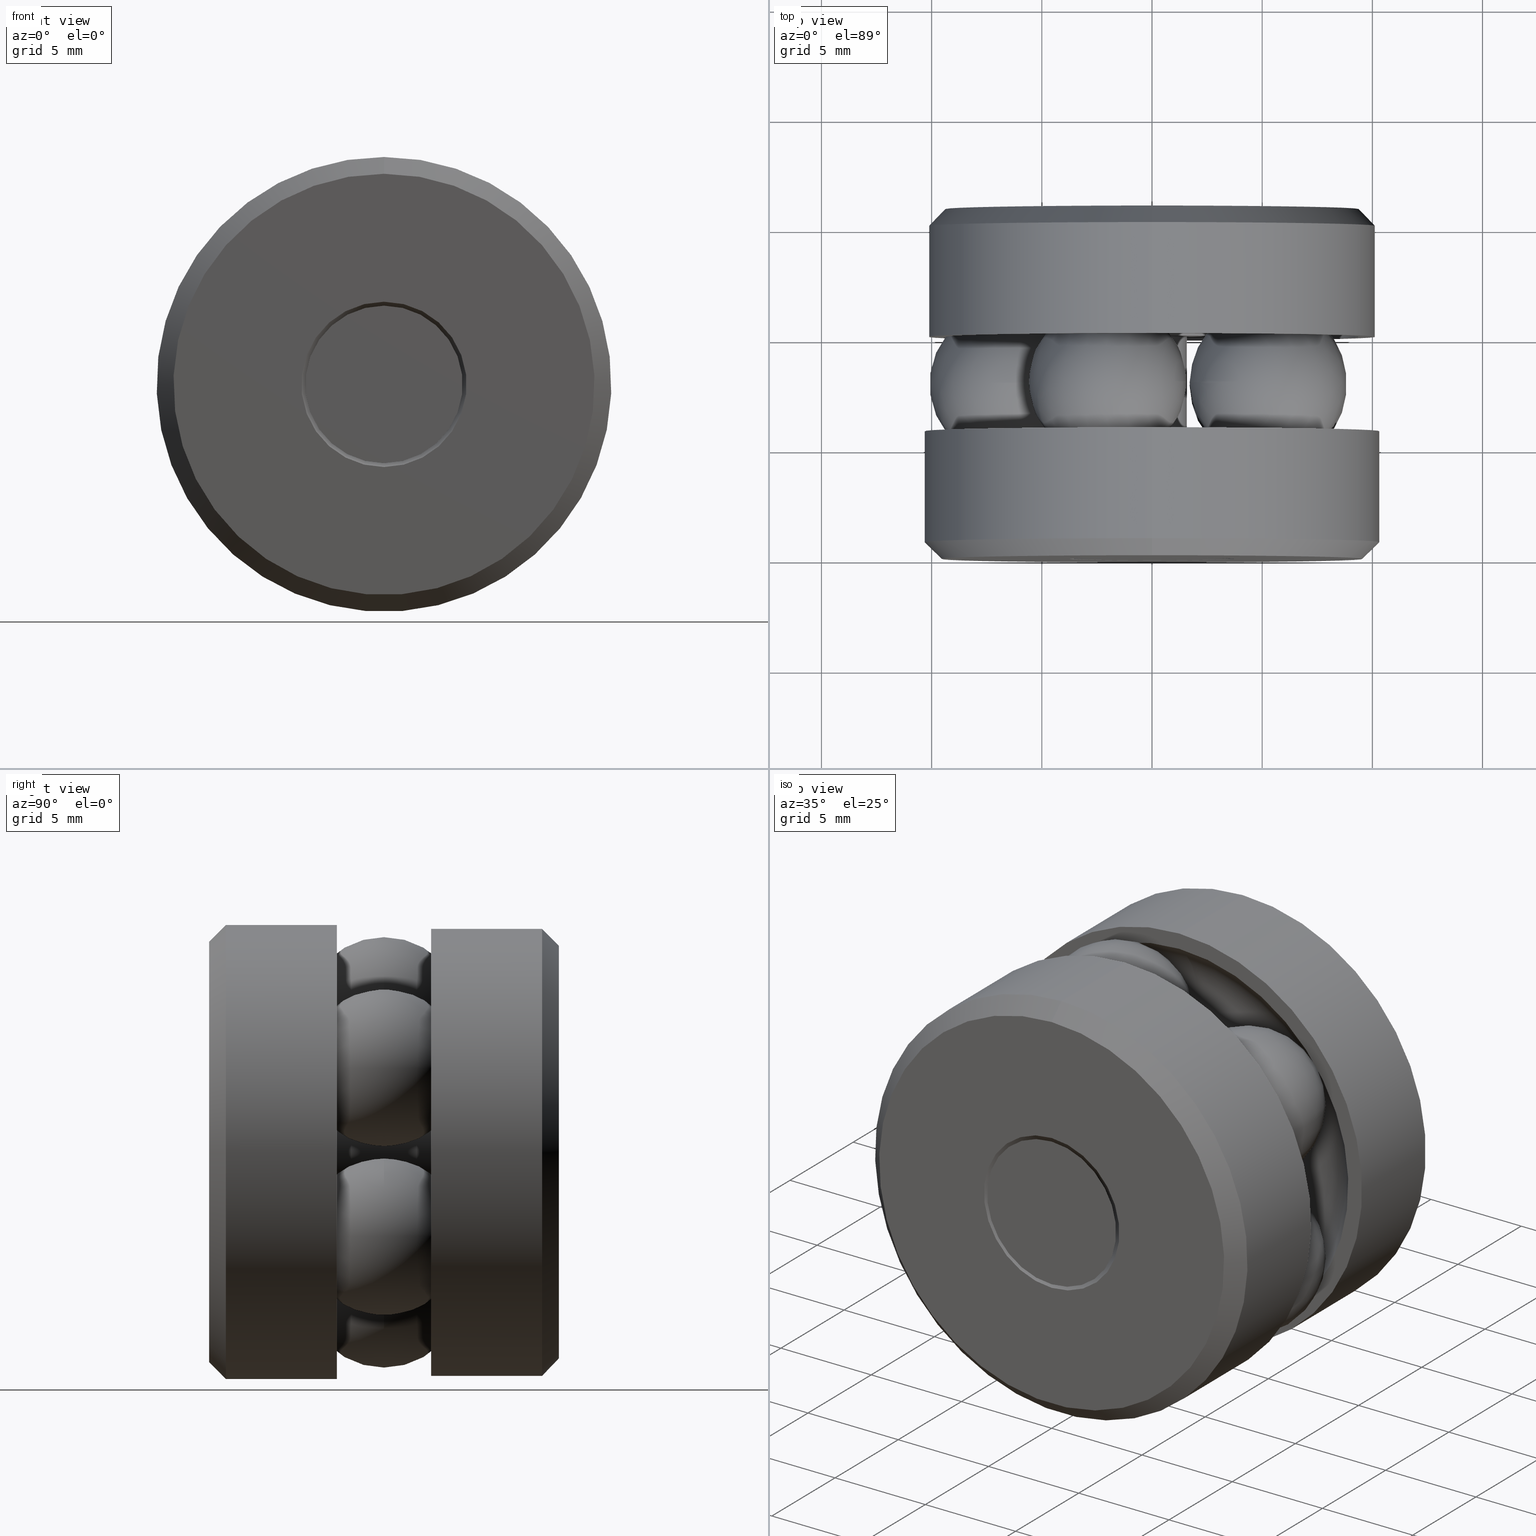
[diagram: canonical four-view strip — front | top / right | iso, engineering-drawing reading convention]
A machine part, canonical four-view strip (front | top / right | iso — engineering-drawing reading convention). The complete STEP part file that produces these views, byte-faithful:
ISO-10303-21;
HEADER;
FILE_DESCRIPTION (( 'STEP AP203' ),
    '1' );
FILE_NAME ('T-114RG_T-114RG-0013.step',
    '2016-02-04T15:34:09',
    ( '' ),
    ( '' ),
    'SwSTEP 2.0',
    'SolidWorks 2016',
    '' );
FILE_SCHEMA (( 'CONFIG_CONTROL_DESIGN' ));
ENDSEC;

DATA;
#1 = EDGE_CURVE ( 'NONE', #20, #20, #309, .T. ) ;
#2 = DIRECTION ( 'NONE',  ( 1.000000000000000000, 0.0000000000000000000, 0.0000000000000000000 ) ) ;
#3 = EDGE_LOOP ( 'NONE', ( #235 ) ) ;
#4 = EDGE_LOOP ( 'NONE', ( #404 ) ) ;
#5 = AXIS2_PLACEMENT_3D ( 'NONE', #10, #94, #499 ) ;
#6 = DIRECTION ( 'NONE',  ( 0.0000000000000000000, 0.0000000000000000000, -1.000000000000000000 ) ) ;
#7 = ORIENTED_EDGE ( 'NONE', *, *, #57, .T. ) ;
#8 = DIRECTION ( 'NONE',  ( 0.0000000000000000000, 0.0000000000000000000, 1.000000000000000000 ) ) ;
#9 = CALENDAR_DATE ( 2016, 4, 2 ) ;
#10 = CARTESIAN_POINT ( 'NONE',  ( -0.1406249999999991400, 0.0000000000000000000, 0.0000000000000000000 ) ) ;
#11 = FACE_OUTER_BOUND ( 'NONE', #191, .T. ) ;
#12 = DIRECTION ( 'NONE',  ( -0.0000000000000000000, 1.000000000000000000, -0.0000000000000000000 ) ) ;
#13 = ADVANCED_FACE ( 'NONE', ( ), #423, .T. ) ;
#14 = CARTESIAN_POINT ( 'NONE',  ( 0.0000000000000000000, 0.2281999999999997600, 0.0000000000000000000 ) ) ;
#15 = ADVANCED_FACE ( 'NONE', ( #521, #83 ), #449, .T. ) ;
#16 = DIRECTION ( 'NONE',  ( 0.0000000000000000000, 0.0000000000000000000, 1.000000000000000000 ) ) ;
#17 = CARTESIAN_POINT ( 'NONE',  ( 0.0000000000000000000, 0.3968000000000001000, 0.0000000000000000000 ) ) ;
#18 = EDGE_LOOP ( 'NONE', ( #389 ) ) ;
#19 = FACE_OUTER_BOUND ( 'NONE', #522, .T. ) ;
#20 = VERTEX_POINT ( 'NONE', #181 ) ;
#21 = DIRECTION ( 'NONE',  ( 0.0000000000000000000, -1.000000000000000000, 0.0000000000000000000 ) ) ;
#22 = PRODUCT_DEFINITION_SHAPE ( 'NONE', 'NONE',  #222 ) ;
#23 = AXIS2_PLACEMENT_3D ( 'NONE', #216, #473, #446 ) ;
#24 = DIRECTION ( 'NONE',  ( 0.0000000000000000000, 0.0000000000000000000, 1.000000000000000000 ) ) ;
#25 = CC_DESIGN_DATE_AND_TIME_ASSIGNMENT ( #390, #245, ( #510 ) ) ;
#26 = EDGE_LOOP ( 'NONE', ( #444 ) ) ;
#27 = CARTESIAN_POINT ( 'NONE',  ( -0.4062500000000000000, 0.2281999999999997900, 0.0000000000000000000 ) ) ;
#28 = PERSON_AND_ORGANIZATION ( #529, #126 ) ;
#29 = MANIFOLD_SOLID_BREP ( 'BALLS[1]', #219 ) ;
#30 = EDGE_CURVE ( 'NONE', #445, #445, #410, .T. ) ;
#31 = EDGE_LOOP ( 'NONE', ( #7 ) ) ;
#32 = TOROIDAL_SURFACE ( 'NONE', #233, 0.2567499999999999800, 0.1405000000000000700 ) ;
#33 = FACE_BOUND ( 'NONE', #120, .T. ) ;
#34 = PLANE ( 'NONE',  #291 ) ;
#35 =( GEOMETRIC_REPRESENTATION_CONTEXT ( 3 ) GLOBAL_UNCERTAINTY_ASSIGNED_CONTEXT ( ( #438 ) ) GLOBAL_UNIT_ASSIGNED_CONTEXT ( ( #112, #209, #483 ) ) REPRESENTATION_CONTEXT ( 'NONE', 'WORKASPACE' ) );
#36 = CARTESIAN_POINT ( 'NONE',  ( 0.0000000000000000000, 0.6250000000000000000, 0.0000000000000000000 ) ) ;
#37 = EDGE_LOOP ( 'NONE', ( #335 ) ) ;
#38 = AXIS2_PLACEMENT_3D ( 'NONE', #428, #416, #407 ) ;
#39 = APPROVAL_ROLE ( '' ) ;
#40 = PERSON_AND_ORGANIZATION_ROLE ( 'creator' ) ;
#41 = ORIENTED_EDGE ( 'NONE', *, *, #30, .T. ) ;
#42 = CIRCLE ( 'NONE', #71, 0.3692500000000000800 ) ;
#43 = CIRCLE ( 'NONE', #278, 0.1406249999999991400 ) ;
#44 = DIRECTION ( 'NONE',  ( -0.0000000000000000000, 1.000000000000000000, -0.0000000000000000000 ) ) ;
#45 = AXIS2_PLACEMENT_3D ( 'NONE', #478, #6, #2 ) ;
#46 = FACE_OUTER_BOUND ( 'NONE', #66, .T. ) ;
#47 = EDGE_LOOP ( 'NONE', ( #348 ) ) ;
#48 = LENGTH_MEASURE_WITH_UNIT ( LENGTH_MEASURE( 0.02539999999999999900 ), #100 );
#49 = APPROVAL ( #243, 'UNSPECIFIED' ) ;
#50 = ADVANCED_FACE ( 'NONE', ( #190, #287 ), #161, .F. ) ;
#51 = CARTESIAN_POINT ( 'NONE',  ( 0.0000000000000000000, 0.5468750000000000000, 0.0000000000000000000 ) ) ;
#52 = ORIENTED_EDGE ( 'NONE', *, *, #319, .F. ) ;
#53 = DIRECTION ( 'NONE',  ( -0.0000000000000000000, 1.000000000000000000, -0.0000000000000000000 ) ) ;
#54 = COORDINATED_UNIVERSAL_TIME_OFFSET ( 5, 0, .BEHIND. ) ;
#55 = ADVANCED_FACE ( 'NONE', ( #72, #397 ), #531, .T. ) ;
#56 = CYLINDRICAL_SURFACE ( 'NONE', #247, 0.06250000000000005600 ) ;
#57 = EDGE_CURVE ( 'NONE', #324, #324, #506, .T. ) ;
#58 = DIRECTION ( 'NONE',  ( 0.0000000000000000000, 0.0000000000000000000, 1.000000000000000000 ) ) ;
#59 = CARTESIAN_POINT ( 'NONE',  ( 0.0000000000000000000, 0.0000000000000000000, 0.0000000000000000000 ) ) ;
#60 = AXIS2_PLACEMENT_3D ( 'NONE', #392, #154, #202 ) ;
#61 = DIRECTION ( 'NONE',  ( -0.0000000000000000000, 1.000000000000000000, 0.0000000000000000000 ) ) ;
#62 = FACE_BOUND ( 'NONE', #411, .T. ) ;
#63 = ORIENTED_EDGE ( 'NONE', *, *, #171, .T. ) ;
#64 = VERTEX_POINT ( 'NONE', #205 ) ;
#65 = AXIS2_PLACEMENT_3D ( 'NONE', #479, #369, #58 ) ;
#66 = EDGE_LOOP ( 'NONE', ( #492 ) ) ;
#67 = CARTESIAN_POINT ( 'NONE',  ( 0.0000000000000000000, 0.03000000000000031100, 0.0000000000000000000 ) ) ;
#68 = LOCAL_TIME ( 10, 34, 9.000000000000000000, #174 ) ;
#69 = FACE_OUTER_BOUND ( 'NONE', #183, .T. ) ;
#70 = DIRECTION ( 'NONE',  ( 0.0000000000000000000, 0.0000000000000000000, 1.000000000000000000 ) ) ;
#71 = AXIS2_PLACEMENT_3D ( 'NONE', #386, #415, #304 ) ;
#72 = FACE_OUTER_BOUND ( 'NONE', #172, .T. ) ;
#73 = ORIENTED_EDGE ( 'NONE', *, *, #440, .T. ) ;
#74 = VERTEX_POINT ( 'NONE', #422 ) ;
#75 = CC_DESIGN_APPROVAL ( #49, ( #510 ) ) ;
#76 = CARTESIAN_POINT ( 'NONE',  ( 0.0000000000000000000, 0.6250000000000000000, 0.0000000000000000000 ) ) ;
#77 = MANIFOLD_SOLID_BREP ( 'BALLS[4]', #110 ) ;
#78 = EDGE_LOOP ( 'NONE', ( #262 ) ) ;
#79 = APPROVAL_DATE_TIME ( #187, #400 ) ;
#80 = CIRCLE ( 'NONE', #114, 0.1443500000000000900 ) ;
#81 = CARTESIAN_POINT ( 'NONE',  ( -0.1443500000000000900, 0.3968000000000001000, 0.0000000000000000000 ) ) ;
#82 = EDGE_CURVE ( 'NONE', #206, #206, #530, .T. ) ;
#83 = FACE_BOUND ( 'NONE', #26, .T. ) ;
#84 = ORIENTED_EDGE ( 'NONE', *, *, #82, .F. ) ;
#85 = VERTEX_POINT ( 'NONE', #237 ) ;
#86 = DIRECTION ( 'NONE',  ( 0.0000000000000000000, 0.0000000000000000000, 1.000000000000000000 ) ) ;
#87 = ORIENTED_EDGE ( 'NONE', *, *, #30, .F. ) ;
#88 = ADVANCED_FACE ( 'NONE', ( #271, #182 ), #153, .F. ) ;
#89 = APPROVAL_PERSON_ORGANIZATION ( #199, #400, #308 ) ;
#90 = CYLINDRICAL_SURFACE ( 'NONE', #524, 0.06750000000000003200 ) ;
#91 = DIRECTION ( 'NONE',  ( -0.8090169943749507800, 0.0000000000000000000, -0.5877852522924685900 ) ) ;
#92 = DIRECTION ( 'NONE',  ( 0.0000000000000000000, 0.0000000000000000000, 1.000000000000000000 ) ) ;
#93 = ADVANCED_FACE ( 'NONE', ( #62, #46 ), #149, .F. ) ;
#94 = DIRECTION ( 'NONE',  ( 0.0000000000000000000, -1.000000000000000000, 0.0000000000000000000 ) ) ;
#95 = CARTESIAN_POINT ( 'NONE',  ( 0.0000000000000000000, 0.3968000000000000400, 0.0000000000000000000 ) ) ;
#96 = EDGE_LOOP ( 'NONE', ( #87 ) ) ;
#97 = ORIENTED_EDGE ( 'NONE', *, *, #494, .F. ) ;
#98 = VERTEX_POINT ( 'NONE', #321 ) ;
#99 = AXIS2_PLACEMENT_3D ( 'NONE', #277, #363, #358 ) ;
#100 =( LENGTH_UNIT ( ) NAMED_UNIT ( * ) SI_UNIT ( $, .METRE. ) );
#101 = CARTESIAN_POINT ( 'NONE',  ( 0.0000000000000000000, 0.5448039321881347200, 0.0000000000000000000 ) ) ;
#102 = CC_DESIGN_SECURITY_CLASSIFICATION ( #510, ( #371 ) ) ;
#103 = DIRECTION ( 'NONE',  ( -0.0000000000000000000, 1.000000000000000000, -0.0000000000000000000 ) ) ;
#104 = ORIENTED_EDGE ( 'NONE', *, *, #227, .T. ) ;
#105 = COORDINATED_UNIVERSAL_TIME_OFFSET ( 5, 0, .BEHIND. ) ;
#106 = CARTESIAN_POINT ( 'NONE',  ( 0.0000000000000000000, -9.172088794783619300E-019, 0.0000000000000000000 ) ) ;
#107 = FACE_OUTER_BOUND ( 'NONE', #186, .T. ) ;
#108 = CARTESIAN_POINT ( 'NONE',  ( 0.2077151133057686100, 0.3125000000000000000, 0.1509138635260912900 ) ) ;
#109 = EDGE_CURVE ( 'NONE', #98, #98, #370, .T. ) ;
#110 = CLOSED_SHELL ( 'NONE', ( #129 ) ) ;
#111 = CLOSED_SHELL ( 'NONE', ( #50, #88, #215, #346, #519, #253, #477, #55 ) ) ;
#112 =( CONVERSION_BASED_UNIT ( 'INCH', #48 ) LENGTH_UNIT ( ) NAMED_UNIT ( #220 ) );
#113 = DIRECTION ( 'NONE',  ( 0.0000000000000000000, -1.000000000000000000, 0.0000000000000000000 ) ) ;
#114 = AXIS2_PLACEMENT_3D ( 'NONE', #14, #12, #8 ) ;
#115 = EDGE_LOOP ( 'NONE', ( #155 ) ) ;
#116 = MANIFOLD_SOLID_BREP ( 'Revolve3', #481 ) ;
#117 = LOCAL_TIME ( 10, 34, 9.000000000000000000, #225 ) ;
#118 = CARTESIAN_POINT ( 'NONE',  ( 0.0000000000000000000, 0.03000000000000031100, 0.4062500000000000000 ) ) ;
#119 = CARTESIAN_POINT ( 'NONE',  ( 0.0000000000000000000, 0.0000000000000000000, 0.0000000000000000000 ) ) ;
#120 = EDGE_LOOP ( 'NONE', ( #97 ) ) ;
#121 = CIRCLE ( 'NONE', #359, 0.06750000000000000400 ) ;
#122 = FACE_BOUND ( 'NONE', #512, .T. ) ;
#123 = AXIS2_PLACEMENT_3D ( 'NONE', #334, #381, #258 ) ;
#124 = DIRECTION ( 'NONE',  ( -0.0000000000000000000, 1.000000000000000000, -0.0000000000000000000 ) ) ;
#125 = EDGE_LOOP ( 'NONE', ( #360 ) ) ;
#126 = ORGANIZATION ( 'UNSPECIFIED', 'UNSPECIFIED', '' ) ;
#127 = DIRECTION ( 'NONE',  ( -0.0000000000000000000, 1.000000000000000000, -0.0000000000000000000 ) ) ;
#128 = PRODUCT_RELATED_PRODUCT_CATEGORY ( 'detail', '', ( #180 ) ) ;
#129 = ADVANCED_FACE ( 'NONE', ( ), #255, .T. ) ;
#130 = DIRECTION ( 'NONE',  ( -0.0000000000000000000, 1.000000000000000000, -0.0000000000000000000 ) ) ;
#131 = DIRECTION ( 'NONE',  ( 0.0000000000000000000, 0.0000000000000000000, 1.000000000000000000 ) ) ;
#132 = CARTESIAN_POINT ( 'NONE',  ( 0.0000000000000000000, 0.3125000000000000000, 0.0000000000000000000 ) ) ;
#133 = ADVANCED_FACE ( 'NONE', ( ), #382, .T. ) ;
#134 = CARTESIAN_POINT ( 'NONE',  ( 0.0000000000000000000, 0.3968000000000001000, 0.3691499999999998700 ) ) ;
#135 = ORIENTED_EDGE ( 'NONE', *, *, #1, .T. ) ;
#136 = FACE_OUTER_BOUND ( 'NONE', #203, .T. ) ;
#137 = EDGE_CURVE ( 'NONE', #534, #534, #487, .T. ) ;
#138 = SPHERICAL_SURFACE ( 'NONE', #463, 0.1405000000000000400 ) ;
#139 = CARTESIAN_POINT ( 'NONE',  ( 0.0000000000000000000, -9.172088794783619300E-019, 0.1476960678118644500 ) ) ;
#140 = DIRECTION ( 'NONE',  ( 0.0000000000000000000, 0.0000000000000000000, 1.000000000000000000 ) ) ;
#141 = ORIENTED_EDGE ( 'NONE', *, *, #517, .F. ) ;
#142 = AXIS2_PLACEMENT_3D ( 'NONE', #368, #356, #350 ) ;
#143 = DIRECTION ( 'NONE',  ( 0.0000000000000000000, 0.0000000000000000000, 1.000000000000000000 ) ) ;
#144 = DIRECTION ( 'NONE',  ( 0.0000000000000000000, 0.0000000000000000000, 1.000000000000000000 ) ) ;
#145 = EDGE_CURVE ( 'NONE', #425, #425, #42, .T. ) ;
#146 = CARTESIAN_POINT ( 'NONE',  ( 0.0000000000000000000, 0.6250000000000000000, 0.3692500000000000800 ) ) ;
#147 = EDGE_LOOP ( 'NONE', ( #229 ) ) ;
#148 = APPROVAL_DATE_TIME ( #254, #49 ) ;
#149 = CONICAL_SURFACE ( 'NONE', #486, 0.1476960678118644500, 0.7853981633974428400 ) ;
#150 = FACE_BOUND ( 'NONE', #443, .T. ) ;
#151 = CARTESIAN_POINT ( 'NONE',  ( 0.0000000000000000000, 0.3968000000000000400, 0.06750000000000008800 ) ) ;
#152 = AXIS2_PLACEMENT_3D ( 'NONE', #51, #44, #249 ) ;
#153 = CYLINDRICAL_SURFACE ( 'NONE', #505, 0.06750000000000008800 ) ;
#154 = DIRECTION ( 'NONE',  ( 0.0000000000000000000, -1.000000000000000000, 0.0000000000000000000 ) ) ;
#155 = ORIENTED_EDGE ( 'NONE', *, *, #347, .F. ) ;
#156 = EDGE_LOOP ( 'NONE', ( #198 ) ) ;
#157 = APPROVAL_PERSON_ORGANIZATION ( #267, #49, #238 ) ;
#158 = DIRECTION ( 'NONE',  ( -0.0000000000000000000, 1.000000000000000000, 0.0000000000000000000 ) ) ;
#159 = FACE_OUTER_BOUND ( 'NONE', #431, .T. ) ;
#160 = AXIS2_PLACEMENT_3D ( 'NONE', #279, #103, #263 ) ;
#161 = CONICAL_SURFACE ( 'NONE', #307, 0.06750000000000008800, 0.7853981633974429500 ) ;
#162 = DIRECTION ( 'NONE',  ( -0.0000000000000000000, 1.000000000000000000, -0.0000000000000000000 ) ) ;
#163 = AXIS2_PLACEMENT_3D ( 'NONE', #385, #86, #270 ) ;
#164 = EDGE_LOOP ( 'NONE', ( #280 ) ) ;
#165 = VERTEX_POINT ( 'NONE', #207 ) ;
#166 = DIRECTION ( 'NONE',  ( 0.0000000000000000000, 0.0000000000000000000, 1.000000000000000000 ) ) ;
#167 = AXIS2_PLACEMENT_3D ( 'NONE', #471, #470, #459 ) ;
#168 = DIRECTION ( 'NONE',  ( 0.0000000000000000000, 0.0000000000000000000, -1.000000000000000000 ) ) ;
#169 = CARTESIAN_POINT ( 'NONE',  ( 0.2077151133057663900, 0.3125000000000000000, -0.1509138635260942900 ) ) ;
#170 = MANIFOLD_SOLID_BREP ( 'Revolve2[2]', #111 ) ;
#171 = EDGE_CURVE ( 'NONE', #312, #312, #482, .T. ) ;
#172 = EDGE_LOOP ( 'NONE', ( #508 ) ) ;
#173 = ADVANCED_FACE ( 'NONE', ( #496, #136 ), #230, .T. ) ;
#174 = COORDINATED_UNIVERSAL_TIME_OFFSET ( 5, 0, .BEHIND. ) ;
#175 = CARTESIAN_POINT ( 'NONE',  ( 0.0000000000000000000, 0.0000000000000000000, 0.0000000000000000000 ) ) ;
#176 = FACE_OUTER_BOUND ( 'NONE', #223, .T. ) ;
#177 = DIRECTION ( 'NONE',  ( 0.0000000000000000000, 0.0000000000000000000, 1.000000000000000000 ) ) ;
#178 = PLANE ( 'NONE',  #60 ) ;
#179 = ADVANCED_FACE ( 'NONE', ( ), #364, .T. ) ;
#180 = PRODUCT ( 'T-114RG_T-114RG-0013', 'T-114RG_T-114RG-0013', '', ( #409 ) ) ;
#181 = CARTESIAN_POINT ( 'NONE',  ( 0.0000000000000000000, 0.2281999999999998500, 0.4062500000000000000 ) ) ;
#182 = FACE_OUTER_BOUND ( 'NONE', #383, .T. ) ;
#183 = EDGE_LOOP ( 'NONE', ( #239 ) ) ;
#184 = AXIS2_PLACEMENT_3D ( 'NONE', #108, #236, #91 ) ;
#185 = VERTEX_POINT ( 'NONE', #433 ) ;
#186 = EDGE_LOOP ( 'NONE', ( #532 ) ) ;
#187 = DATE_AND_TIME ( #298, #418 ) ;
#188 = FACE_OUTER_BOUND ( 'NONE', #252, .T. ) ;
#189 = CARTESIAN_POINT ( 'NONE',  ( 0.0000000000000000000, 0.6250000000000000000, 0.0000000000000000000 ) ) ;
#190 = FACE_OUTER_BOUND ( 'NONE', #31, .T. ) ;
#191 = EDGE_LOOP ( 'NONE', ( #218 ) ) ;
#192 = VERTEX_POINT ( 'NONE', #420 ) ;
#193 = PLANE ( 'NONE',  #5 ) ;
#194 = CC_DESIGN_PERSON_AND_ORGANIZATION_ASSIGNMENT ( #28, #396, ( #180 ) ) ;
#195 = CARTESIAN_POINT ( 'NONE',  ( 0.0000000000000000000, 0.6250000000000000000, 0.1476960678118645600 ) ) ;
#196 = AXIS2_PLACEMENT_3D ( 'NONE', #293, #475, #294 ) ;
#197 = DIRECTION ( 'NONE',  ( 0.0000000000000000000, 0.0000000000000000000, 1.000000000000000000 ) ) ;
#198 = ORIENTED_EDGE ( 'NONE', *, *, #517, .T. ) ;
#199 = PERSON_AND_ORGANIZATION ( #529, #126 ) ;
#200 = CIRCLE ( 'NONE', #414, 0.3992499999999999900 ) ;
#201 = EDGE_CURVE ( 'NONE', #192, #192, #351, .T. ) ;
#202 = DIRECTION ( 'NONE',  ( 0.0000000000000000000, -0.0000000000000000000, -1.000000000000000000 ) ) ;
#203 = EDGE_LOOP ( 'NONE', ( #84 ) ) ;
#204 = ORIENTED_EDGE ( 'NONE', *, *, #408, .T. ) ;
#205 = CARTESIAN_POINT ( 'NONE',  ( 0.0000000000000000000, 0.6250000000000000000, 0.1406249999999992500 ) ) ;
#206 = VERTEX_POINT ( 'NONE', #118 ) ;
#207 = CARTESIAN_POINT ( 'NONE',  ( 0.0000000000000000000, 0.07812499999999998600, 0.06250000000000001400 ) ) ;
#208 = CARTESIAN_POINT ( 'NONE',  ( 0.0000000000000000000, 0.3968000000000001000, 0.1443500000000000600 ) ) ;
#209 =( NAMED_UNIT ( * ) PLANE_ANGLE_UNIT ( ) SI_UNIT ( $, .RADIAN. ) );
#210 = EDGE_LOOP ( 'NONE', ( #63 ) ) ;
#211 = PERSON_AND_ORGANIZATION ( #529, #126 ) ;
#212 = CIRCLE ( 'NONE', #447, 0.06750000000000008800 ) ;
#213 = CARTESIAN_POINT ( 'NONE',  ( 0.0000000000000000000, 0.07812499999999998600, 0.0000000000000000000 ) ) ;
#214 = ADVANCED_FACE ( 'NONE', ( #261, #240 ), #32, .F. ) ;
#215 = ADVANCED_FACE ( 'NONE', ( #454, #467 ), #34, .T. ) ;
#216 = CARTESIAN_POINT ( 'NONE',  ( -0.07934011330577051000, 0.3125000000000000000, -0.2441837605587797700 ) ) ;
#217 = AXIS2_PLACEMENT_3D ( 'NONE', #489, #264, #361 ) ;
#218 = ORIENTED_EDGE ( 'NONE', *, *, #347, .T. ) ;
#219 = CLOSED_SHELL ( 'NONE', ( #13 ) ) ;
#220 = DIMENSIONAL_EXPONENTS ( 1.000000000000000000, 0.0000000000000000000, 0.0000000000000000000, 0.0000000000000000000, 0.0000000000000000000, 0.0000000000000000000, 0.0000000000000000000 ) ;
#221 = CONICAL_SURFACE ( 'NONE', #490, 0.06250000000000001400, 0.7853981633974427300 ) ;
#222 = PRODUCT_DEFINITION ( 'UNKNOWN', '', #371, #244 ) ;
#223 = EDGE_LOOP ( 'NONE', ( #323 ) ) ;
#224 = AXIS2_PLACEMENT_3D ( 'NONE', #175, #325, #92 ) ;
#225 = COORDINATED_UNIVERSAL_TIME_OFFSET ( 5, 0, .BEHIND. ) ;
#226 = DIRECTION ( 'NONE',  ( 0.0000000000000000000, -1.000000000000000000, 0.0000000000000000000 ) ) ;
#227 = EDGE_CURVE ( 'NONE', #85, #85, #465, .T. ) ;
#228 = DIRECTION ( 'NONE',  ( -0.8090169943749422300, 0.0000000000000000000, 0.5877852522924802400 ) ) ;
#229 = ORIENTED_EDGE ( 'NONE', *, *, #57, .F. ) ;
#230 = CONICAL_SURFACE ( 'NONE', #123, 0.4062500000000000000, 0.7853981633974429500 ) ;
#231 = CONICAL_SURFACE ( 'NONE', #403, 0.3692500000000000800, 0.7853981633974391800 ) ;
#232 = DIRECTION ( 'NONE',  ( 0.5877852522924802400, -0.0000000000000000000, 0.8090169943749422300 ) ) ;
#233 = AXIS2_PLACEMENT_3D ( 'NONE', #132, #130, #197 ) ;
#234 = DIRECTION ( 'NONE',  ( -0.0000000000000000000, 1.000000000000000000, -0.0000000000000000000 ) ) ;
#235 = ORIENTED_EDGE ( 'NONE', *, *, #109, .T. ) ;
#236 = DIRECTION ( 'NONE',  ( -0.5877852522924685900, 0.0000000000000000000, 0.8090169943749507800 ) ) ;
#237 = CARTESIAN_POINT ( 'NONE',  ( 0.0000000000000000000, 0.3968000000000000400, 0.3992499999999999900 ) ) ;
#238 = APPROVAL_ROLE ( '' ) ;
#239 = ORIENTED_EDGE ( 'NONE', *, *, #1, .F. ) ;
#240 = FACE_OUTER_BOUND ( 'NONE', #164, .T. ) ;
#241 = FACE_OUTER_BOUND ( 'NONE', #315, .T. ) ;
#242 = AXIS2_PLACEMENT_3D ( 'NONE', #372, #234, #542 ) ;
#243 = APPROVAL_STATUS ( 'not_yet_approved' ) ;
#244 = DESIGN_CONTEXT ( 'detailed design', #328, 'design' ) ;
#245 = DATE_TIME_ROLE ( 'classification_date' ) ;
#246 = APPROVAL ( #272, 'UNSPECIFIED' ) ;
#247 = AXIS2_PLACEMENT_3D ( 'NONE', #327, #518, #306 ) ;
#248 = ADVANCED_FACE ( 'NONE', ( #336 ), #251, .T. ) ;
#249 = DIRECTION ( 'NONE',  ( 0.0000000000000000000, 0.0000000000000000000, 1.000000000000000000 ) ) ;
#250 = EDGE_CURVE ( 'NONE', #523, #523, #121, .T. ) ;
#251 = PLANE ( 'NONE',  #384 ) ;
#252 = EDGE_LOOP ( 'NONE', ( #507 ) ) ;
#253 = ADVANCED_FACE ( 'NONE', ( #19, #331 ), #541, .T. ) ;
#254 = DATE_AND_TIME ( #379, #493 ) ;
#255 = SPHERICAL_SURFACE ( 'NONE', #23, 0.1405000000000000400 ) ;
#256 = CIRCLE ( 'NONE', #341, 0.1443500000000000600 ) ;
#257 = DIRECTION ( 'NONE',  ( 0.0000000000000000000, -0.0000000000000000000, -1.000000000000000000 ) ) ;
#258 = DIRECTION ( 'NONE',  ( 0.0000000000000000000, 0.0000000000000000000, 1.000000000000000000 ) ) ;
#259 = CARTESIAN_POINT ( 'NONE',  ( 0.0000000000000000000, 0.07812499999999998600, 0.0000000000000000000 ) ) ;
#260 = AXIS2_PLACEMENT_3D ( 'NONE', #342, #286, #285 ) ;
#261 = FACE_OUTER_BOUND ( 'NONE', #322, .T. ) ;
#262 = ORIENTED_EDGE ( 'NONE', *, *, #201, .F. ) ;
#263 = DIRECTION ( 'NONE',  ( 0.0000000000000000000, 0.0000000000000000000, 1.000000000000000000 ) ) ;
#264 = DIRECTION ( 'NONE',  ( -0.9510565162951544200, 0.0000000000000000000, -0.3090169943749447300 ) ) ;
#265 = MANIFOLD_SOLID_BREP ( 'BALLS[2]', #310 ) ;
#266 = ORIENTED_EDGE ( 'NONE', *, *, #376, .T. ) ;
#267 = PERSON_AND_ORGANIZATION ( #529, #126 ) ;
#268 = CIRCLE ( 'NONE', #167, 0.3691499999999998700 ) ;
#269 = AXIS2_PLACEMENT_3D ( 'NONE', #27, #61, #24 ) ;
#270 = DIRECTION ( 'NONE',  ( 1.000000000000000000, 0.0000000000000000000, 0.0000000000000000000 ) ) ;
#271 = FACE_OUTER_BOUND ( 'NONE', #47, .T. ) ;
#272 = APPROVAL_STATUS ( 'not_yet_approved' ) ;
#273 = CLOSED_SHELL ( 'NONE', ( #480 ) ) ;
#274 = VERTEX_POINT ( 'NONE', #208 ) ;
#275 = CC_DESIGN_APPROVAL ( #246, ( #222 ) ) ;
#276 = APPLICATION_PROTOCOL_DEFINITION ( 'international standard', 'config_control_design', 1994, #328 ) ;
#277 = CARTESIAN_POINT ( 'NONE',  ( 0.0000000000000000000, -9.172088794783619300E-019, 0.0000000000000000000 ) ) ;
#278 = AXIS2_PLACEMENT_3D ( 'NONE', #387, #377, #70 ) ;
#279 = CARTESIAN_POINT ( 'NONE',  ( 0.0000000000000000000, 0.2281999999999998500, 0.0000000000000000000 ) ) ;
#280 = ORIENTED_EDGE ( 'NONE', *, *, #376, .F. ) ;
#281 = PERSON_AND_ORGANIZATION ( #529, #126 ) ;
#282 = EDGE_CURVE ( 'NONE', #412, #412, #212, .T. ) ;
#283 = DIRECTION ( 'NONE',  ( 0.0000000000000000000, 0.0000000000000000000, 1.000000000000000000 ) ) ;
#284 = FACE_OUTER_BOUND ( 'NONE', #4, .T. ) ;
#285 = DIRECTION ( 'NONE',  ( 0.0000000000000000000, 0.0000000000000000000, 1.000000000000000000 ) ) ;
#286 = DIRECTION ( 'NONE',  ( -0.0000000000000000000, 1.000000000000000000, -0.0000000000000000000 ) ) ;
#287 = FACE_BOUND ( 'NONE', #18, .T. ) ;
#288 = ORIENTED_EDGE ( 'NONE', *, *, #137, .T. ) ;
#289 = VERTEX_POINT ( 'NONE', #442 ) ;
#290 = PERSON_AND_ORGANIZATION_ROLE ( 'classification_officer' ) ;
#291 = AXIS2_PLACEMENT_3D ( 'NONE', #81, #21, #257 ) ;
#292 = DIRECTION ( 'NONE',  ( 0.0000000000000000000, 0.0000000000000000000, 1.000000000000000000 ) ) ;
#293 = CARTESIAN_POINT ( 'NONE',  ( 0.0000000000000000000, 0.6250000000000000000, 0.0000000000000000000 ) ) ;
#294 = DIRECTION ( 'NONE',  ( 0.0000000000000000000, 0.0000000000000000000, 1.000000000000000000 ) ) ;
#295 = ADVANCED_FACE ( 'NONE', ( #11, #107 ), #90, .F. ) ;
#296 = EDGE_LOOP ( 'NONE', ( #498 ) ) ;
#297 = SECURITY_CLASSIFICATION_LEVEL ( 'unclassified' ) ;
#298 = CALENDAR_DATE ( 2016, 4, 2 ) ;
#299 = DIRECTION ( 'NONE',  ( -0.0000000000000000000, 1.000000000000000000, 0.0000000000000000000 ) ) ;
#300 = CIRCLE ( 'NONE', #38, 0.06750000000000004600 ) ;
#301 = ADVANCED_FACE ( 'NONE', ( #451 ), #193, .T. ) ;
#302 = PERSON_AND_ORGANIZATION_ROLE ( 'design_supplier' ) ;
#303 = CARTESIAN_POINT ( 'NONE',  ( 0.0000000000000000000, 0.6250000000000000000, 0.0000000000000000000 ) ) ;
#304 = DIRECTION ( 'NONE',  ( 0.0000000000000000000, 0.0000000000000000000, 1.000000000000000000 ) ) ;
#305 = PERSON_AND_ORGANIZATION_ROLE ( 'creator' ) ;
#306 = DIRECTION ( 'NONE',  ( 0.0000000000000000000, 0.0000000000000000000, 1.000000000000000000 ) ) ;
#307 = AXIS2_PLACEMENT_3D ( 'NONE', #101, #316, #143 ) ;
#308 = APPROVAL_ROLE ( '' ) ;
#309 = CIRCLE ( 'NONE', #160, 0.4062500000000000000 ) ;
#310 = CLOSED_SHELL ( 'NONE', ( #179 ) ) ;
#311 = APPROVAL_STATUS ( 'not_yet_approved' ) ;
#312 = VERTEX_POINT ( 'NONE', #139 ) ;
#313 = CC_DESIGN_PERSON_AND_ORGANIZATION_ASSIGNMENT ( #211, #40, ( #222 ) ) ;
#314 = DIRECTION ( 'NONE',  ( -0.0000000000000000000, 1.000000000000000000, -0.0000000000000000000 ) ) ;
#315 = EDGE_LOOP ( 'NONE', ( #474 ) ) ;
#316 = DIRECTION ( 'NONE',  ( -0.0000000000000000000, 1.000000000000000000, -0.0000000000000000000 ) ) ;
#317 = DATE_AND_TIME ( #434, #539 ) ;
#318 = FACE_BOUND ( 'NONE', #210, .T. ) ;
#319 = EDGE_CURVE ( 'NONE', #289, #289, #200, .T. ) ;
#320 = PLANE ( 'NONE',  #374 ) ;
#321 = CARTESIAN_POINT ( 'NONE',  ( 0.0000000000000000000, -3.606161054447099600E-017, 0.3762499999999999700 ) ) ;
#322 = EDGE_LOOP ( 'NONE', ( #204 ) ) ;
#323 = ORIENTED_EDGE ( 'NONE', *, *, #494, .T. ) ;
#324 = VERTEX_POINT ( 'NONE', #195 ) ;
#325 = DIRECTION ( 'NONE',  ( -0.0000000000000000000, 1.000000000000000000, -0.0000000000000000000 ) ) ;
#326 = DIRECTION ( 'NONE',  ( 0.0000000000000000000, 0.0000000000000000000, 1.000000000000000000 ) ) ;
#327 = CARTESIAN_POINT ( 'NONE',  ( 0.0000000000000000000, 0.0000000000000000000, 0.0000000000000000000 ) ) ;
#328 = APPLICATION_CONTEXT ( 'configuration controlled 3d designs of mechanical parts and assemblies' ) ;
#329 = EDGE_LOOP ( 'NONE', ( #52 ) ) ;
#330 = APPROVAL_DATE_TIME ( #450, #246 ) ;
#331 = FACE_OUTER_BOUND ( 'NONE', #329, .T. ) ;
#332 = ADVANCED_BREP_SHAPE_REPRESENTATION ( 'T-114RG_T-114RG-0013', ( #375, #170, #526, #116, #29, #265, #476, #77, #163 ), #35 ) ;
#333 = CARTESIAN_POINT ( 'NONE',  ( 0.0000000000000000000, 0.0000000000000000000, 0.0000000000000000000 ) ) ;
#334 = CARTESIAN_POINT ( 'NONE',  ( 0.0000000000000000000, 0.03000000000000031100, 0.0000000000000000000 ) ) ;
#335 = ORIENTED_EDGE ( 'NONE', *, *, #319, .T. ) ;
#336 = FACE_OUTER_BOUND ( 'NONE', #156, .T. ) ;
#337 = CIRCLE ( 'NONE', #511, 0.1406249999999992500 ) ;
#338 = CC_DESIGN_DATE_AND_TIME_ASSIGNMENT ( #317, #497, ( #222 ) ) ;
#339 = ORIENTED_EDGE ( 'NONE', *, *, #137, .F. ) ;
#340 = APPROVAL_PERSON_ORGANIZATION ( #462, #246, #39 ) ;
#341 = AXIS2_PLACEMENT_3D ( 'NONE', #17, #162, #166 ) ;
#342 = CARTESIAN_POINT ( 'NONE',  ( 0.0000000000000000000, 0.3968000000000000400, 0.0000000000000000000 ) ) ;
#343 = DIRECTION ( 'NONE',  ( -0.0000000000000000000, 1.000000000000000000, -0.0000000000000000000 ) ) ;
#344 = CARTESIAN_POINT ( 'NONE',  ( 0.0000000000000000000, 0.0000000000000000000, 0.1406249999999991400 ) ) ;
#345 = CARTESIAN_POINT ( 'NONE',  ( 0.0000000000000000000, 0.08019606781186530700, 0.0000000000000000000 ) ) ;
#346 = ADVANCED_FACE ( 'NONE', ( #437, #419 ), #528, .F. ) ;
#347 = EDGE_CURVE ( 'NONE', #185, #185, #300, .T. ) ;
#348 = ORIENTED_EDGE ( 'NONE', *, *, #282, .T. ) ;
#349 = ADVANCED_FACE ( 'NONE', ( #318, #188 ), #504, .T. ) ;
#350 = DIRECTION ( 'NONE',  ( 0.0000000000000000000, -0.0000000000000000000, -1.000000000000000000 ) ) ;
#351 = CIRCLE ( 'NONE', #152, 0.06250000000000009700 ) ;
#352 = CARTESIAN_POINT ( 'NONE',  ( 0.0000000000000000000, 0.5448039321881347200, 0.06750000000000008800 ) ) ;
#353 = CIRCLE ( 'NONE', #432, 0.06250000000000001400 ) ;
#354 = CARTESIAN_POINT ( 'NONE',  ( 0.0000000000000000000, 0.08019606781186530700, 0.06750000000000000400 ) ) ;
#355 = DIRECTION ( 'NONE',  ( -0.0000000000000000000, 1.000000000000000000, -0.0000000000000000000 ) ) ;
#356 = DIRECTION ( 'NONE',  ( 0.0000000000000000000, -1.000000000000000000, 0.0000000000000000000 ) ) ;
#357 = DIRECTION ( 'NONE',  ( -0.0000000000000000000, 1.000000000000000000, -0.0000000000000000000 ) ) ;
#358 = DIRECTION ( 'NONE',  ( 0.0000000000000000000, 0.0000000000000000000, 1.000000000000000000 ) ) ;
#359 = AXIS2_PLACEMENT_3D ( 'NONE', #345, #343, #426 ) ;
#360 = ORIENTED_EDGE ( 'NONE', *, *, #464, .T. ) ;
#361 = DIRECTION ( 'NONE',  ( 0.3090169943749447300, 0.0000000000000000000, -0.9510565162951544200 ) ) ;
#362 = EDGE_LOOP ( 'NONE', ( #73 ) ) ;
#363 = DIRECTION ( 'NONE',  ( -0.0000000000000000000, 1.000000000000000000, -0.0000000000000000000 ) ) ;
#364 = SPHERICAL_SURFACE ( 'NONE', #184, 0.1405000000000000400 ) ;
#365 = SHAPE_DEFINITION_REPRESENTATION ( #22, #332 ) ;
#366 = DIRECTION ( 'NONE',  ( 0.0000000000000000000, 0.0000000000000000000, 1.000000000000000000 ) ) ;
#367 = AXIS2_PLACEMENT_3D ( 'NONE', #76, #357, #491 ) ;
#368 = CARTESIAN_POINT ( 'NONE',  ( -0.1476960678118644500, -1.848940971197467900E-017, 0.0000000000000000000 ) ) ;
#369 = DIRECTION ( 'NONE',  ( -0.0000000000000000000, 1.000000000000000000, -0.0000000000000000000 ) ) ;
#370 = CIRCLE ( 'NONE', #456, 0.3762499999999999700 ) ;
#371 = PRODUCT_DEFINITION_FORMATION_WITH_SPECIFIED_SOURCE ( 'ANY', '', #180, .NOT_KNOWN. ) ;
#372 = CARTESIAN_POINT ( 'NONE',  ( 0.0000000000000000000, 0.3968000000000001000, 0.0000000000000000000 ) ) ;
#373 = DIRECTION ( 'NONE',  ( -0.0000000000000000000, 1.000000000000000000, -0.0000000000000000000 ) ) ;
#374 = AXIS2_PLACEMENT_3D ( 'NONE', #435, #299, #131 ) ;
#375 = MANIFOLD_SOLID_BREP ( 'Revolve2[1]', #453 ) ;
#376 = EDGE_CURVE ( 'NONE', #74, #74, #80, .T. ) ;
#377 = DIRECTION ( 'NONE',  ( -0.0000000000000000000, 1.000000000000000000, -0.0000000000000000000 ) ) ;
#378 = EDGE_LOOP ( 'NONE', ( #398 ) ) ;
#379 = CALENDAR_DATE ( 2016, 4, 2 ) ;
#380 = FACE_OUTER_BOUND ( 'NONE', #461, .T. ) ;
#381 = DIRECTION ( 'NONE',  ( -0.0000000000000000000, 1.000000000000000000, -0.0000000000000000000 ) ) ;
#382 = SPHERICAL_SURFACE ( 'NONE', #45, 0.1405000000000000400 ) ;
#383 = EDGE_LOOP ( 'NONE', ( #339 ) ) ;
#384 = AXIS2_PLACEMENT_3D ( 'NONE', #36, #158, #366 ) ;
#385 = CARTESIAN_POINT ( 'NONE',  ( 0.0000000000000000000, 0.0000000000000000000, 0.0000000000000000000 ) ) ;
#386 = CARTESIAN_POINT ( 'NONE',  ( 0.0000000000000000000, 0.6250000000000000000, 0.0000000000000000000 ) ) ;
#387 = CARTESIAN_POINT ( 'NONE',  ( 0.0000000000000000000, 0.0000000000000000000, 0.0000000000000000000 ) ) ;
#388 = ADVANCED_FACE ( 'NONE', ( #284, #69 ), #391, .T. ) ;
#389 = ORIENTED_EDGE ( 'NONE', *, *, #282, .F. ) ;
#390 = DATE_AND_TIME ( #501, #68 ) ;
#391 = CYLINDRICAL_SURFACE ( 'NONE', #224, 0.4062500000000000000 ) ;
#392 = CARTESIAN_POINT ( 'NONE',  ( -0.3992499999999999900, 0.3968000000000001000, 0.0000000000000000000 ) ) ;
#393 = ADVANCED_FACE ( 'NONE', ( #176, #406 ), #56, .T. ) ;
#394 = APPLICATION_PROTOCOL_DEFINITION ( 'international standard', 'config_control_design', 1994, #485 ) ;
#395 = AXIS2_PLACEMENT_3D ( 'NONE', #536, #457, #144 ) ;
#396 = PERSON_AND_ORGANIZATION_ROLE ( 'design_owner' ) ;
#397 = FACE_BOUND ( 'NONE', #147, .T. ) ;
#398 = ORIENTED_EDGE ( 'NONE', *, *, #201, .T. ) ;
#399 = VERTEX_POINT ( 'NONE', #344 ) ;
#400 = APPROVAL ( #311, 'UNSPECIFIED' ) ;
#401 = DIRECTION ( 'NONE',  ( 0.0000000000000000000, 0.0000000000000000000, 1.000000000000000000 ) ) ;
#402 = DIRECTION ( 'NONE',  ( 0.0000000000000000000, 0.0000000000000000000, -1.000000000000000000 ) ) ;
#403 = AXIS2_PLACEMENT_3D ( 'NONE', #189, #430, #520 ) ;
#404 = ORIENTED_EDGE ( 'NONE', *, *, #82, .T. ) ;
#405 = PERSON_AND_ORGANIZATION ( #529, #126 ) ;
#406 = FACE_OUTER_BOUND ( 'NONE', #78, .T. ) ;
#407 = DIRECTION ( 'NONE',  ( 0.0000000000000000000, 0.0000000000000000000, 1.000000000000000000 ) ) ;
#408 = EDGE_CURVE ( 'NONE', #509, #509, #268, .T. ) ;
#409 = MECHANICAL_CONTEXT ( 'NONE', #485, 'mechanical' ) ;
#410 = CIRCLE ( 'NONE', #242, 0.3691499999999998700 ) ;
#411 = EDGE_LOOP ( 'NONE', ( #537 ) ) ;
#412 = VERTEX_POINT ( 'NONE', #352 ) ;
#413 = DIRECTION ( 'NONE',  ( 0.0000000000000000000, 0.0000000000000000000, 1.000000000000000000 ) ) ;
#414 = AXIS2_PLACEMENT_3D ( 'NONE', #503, #540, #326 ) ;
#415 = DIRECTION ( 'NONE',  ( -0.0000000000000000000, 1.000000000000000000, -0.0000000000000000000 ) ) ;
#416 = DIRECTION ( 'NONE',  ( -0.0000000000000000000, 1.000000000000000000, -0.0000000000000000000 ) ) ;
#417 = EDGE_LOOP ( 'NONE', ( #424 ) ) ;
#418 = LOCAL_TIME ( 10, 34, 9.000000000000000000, #527 ) ;
#419 = FACE_OUTER_BOUND ( 'NONE', #96, .T. ) ;
#420 = CARTESIAN_POINT ( 'NONE',  ( 0.0000000000000000000, 0.5468750000000000000, 0.06250000000000009700 ) ) ;
#421 = AXIS2_PLACEMENT_3D ( 'NONE', #67, #314, #538 ) ;
#422 = CARTESIAN_POINT ( 'NONE',  ( 0.0000000000000000000, 0.2281999999999997600, 0.1443500000000000900 ) ) ;
#423 = SPHERICAL_SURFACE ( 'NONE', #217, 0.1405000000000000400 ) ;
#424 = ORIENTED_EDGE ( 'NONE', *, *, #440, .F. ) ;
#425 = VERTEX_POINT ( 'NONE', #146 ) ;
#426 = DIRECTION ( 'NONE',  ( 0.0000000000000000000, 0.0000000000000000000, 1.000000000000000000 ) ) ;
#427 = CARTESIAN_POINT ( 'NONE',  ( 0.0000000000000000000, -3.606161054447099600E-017, 0.0000000000000000000 ) ) ;
#428 = CARTESIAN_POINT ( 'NONE',  ( 0.0000000000000000000, 0.2281999999999999300, 0.0000000000000000000 ) ) ;
#429 = CC_DESIGN_APPROVAL ( #400, ( #371 ) ) ;
#430 = DIRECTION ( 'NONE',  ( 0.0000000000000000000, -1.000000000000000000, 0.0000000000000000000 ) ) ;
#431 = EDGE_LOOP ( 'NONE', ( #141 ) ) ;
#432 = AXIS2_PLACEMENT_3D ( 'NONE', #259, #127, #177 ) ;
#433 = CARTESIAN_POINT ( 'NONE',  ( 0.0000000000000000000, 0.2281999999999999300, 0.06750000000000004600 ) ) ;
#434 = CALENDAR_DATE ( 2016, 4, 2 ) ;
#435 = CARTESIAN_POINT ( 'NONE',  ( -0.1443500000000000300, 0.2281999999999998500, 0.0000000000000000000 ) ) ;
#436 = ADVANCED_FACE ( 'NONE', ( #515, #159 ), #484, .T. ) ;
#437 = FACE_OUTER_BOUND ( 'NONE', #125, .T. ) ;
#438 = UNCERTAINTY_MEASURE_WITH_UNIT (LENGTH_MEASURE( 1.000000000000000100E-005 ), #112, 'distance_accuracy_value', 'NONE');
#439 = CARTESIAN_POINT ( 'NONE',  ( 0.0000000000000000000, 0.2281999999999997600, 0.3691499999999998700 ) ) ;
#440 = EDGE_CURVE ( 'NONE', #399, #399, #43, .T. ) ;
#441 = ADVANCED_FACE ( 'NONE', ( #380, #502 ), #320, .T. ) ;
#442 = CARTESIAN_POINT ( 'NONE',  ( 0.0000000000000000000, 0.5949999999999996400, 0.3992499999999999900 ) ) ;
#443 = EDGE_LOOP ( 'NONE', ( #448 ) ) ;
#444 = ORIENTED_EDGE ( 'NONE', *, *, #408, .F. ) ;
#445 = VERTEX_POINT ( 'NONE', #134 ) ;
#446 = DIRECTION ( 'NONE',  ( 0.3090169943749582200, 0.0000000000000000000, 0.9510565162951500900 ) ) ;
#447 = AXIS2_PLACEMENT_3D ( 'NONE', #458, #468, #16 ) ;
#448 = ORIENTED_EDGE ( 'NONE', *, *, #145, .F. ) ;
#449 = PLANE ( 'NONE',  #269 ) ;
#450 = DATE_AND_TIME ( #9, #117 ) ;
#451 = FACE_OUTER_BOUND ( 'NONE', #417, .T. ) ;
#452 = DIRECTION ( 'NONE',  ( 0.0000000000000000000, 0.0000000000000000000, 1.000000000000000000 ) ) ;
#453 = CLOSED_SHELL ( 'NONE', ( #301, #248, #436, #393, #514 ) ) ;
#454 = FACE_BOUND ( 'NONE', #500, .T. ) ;
#455 = DIRECTION ( 'NONE',  ( -0.0000000000000000000, 1.000000000000000000, -0.0000000000000000000 ) ) ;
#456 = AXIS2_PLACEMENT_3D ( 'NONE', #427, #124, #452 ) ;
#457 = DIRECTION ( 'NONE',  ( -0.0000000000000000000, 1.000000000000000000, 0.0000000000000000000 ) ) ;
#458 = CARTESIAN_POINT ( 'NONE',  ( 0.0000000000000000000, 0.5448039321881347200, 0.0000000000000000000 ) ) ;
#459 = DIRECTION ( 'NONE',  ( 0.0000000000000000000, 0.0000000000000000000, 1.000000000000000000 ) ) ;
#460 = CC_DESIGN_PERSON_AND_ORGANIZATION_ASSIGNMENT ( #513, #305, ( #371 ) ) ;
#461 = EDGE_LOOP ( 'NONE', ( #266 ) ) ;
#462 = PERSON_AND_ORGANIZATION ( #529, #126 ) ;
#463 = AXIS2_PLACEMENT_3D ( 'NONE', #169, #232, #228 ) ;
#464 = EDGE_CURVE ( 'NONE', #274, #274, #256, .T. ) ;
#465 = CIRCLE ( 'NONE', #260, 0.3992499999999999900 ) ;
#466 = EDGE_LOOP ( 'NONE', ( #135 ) ) ;
#467 = FACE_OUTER_BOUND ( 'NONE', #296, .T. ) ;
#468 = DIRECTION ( 'NONE',  ( -0.0000000000000000000, 1.000000000000000000, -0.0000000000000000000 ) ) ;
#469 = FACE_OUTER_BOUND ( 'NONE', #362, .T. ) ;
#470 = DIRECTION ( 'NONE',  ( -0.0000000000000000000, 1.000000000000000000, -0.0000000000000000000 ) ) ;
#471 = CARTESIAN_POINT ( 'NONE',  ( 0.0000000000000000000, 0.2281999999999997600, 0.0000000000000000000 ) ) ;
#472 = AXIS2_PLACEMENT_3D ( 'NONE', #59, #53, #292 ) ;
#473 = DIRECTION ( 'NONE',  ( 0.9510565162951500900, 0.0000000000000000000, -0.3090169943749582200 ) ) ;
#474 = ORIENTED_EDGE ( 'NONE', *, *, #227, .F. ) ;
#475 = DIRECTION ( 'NONE',  ( -0.0000000000000000000, 1.000000000000000000, -0.0000000000000000000 ) ) ;
#476 = MANIFOLD_SOLID_BREP ( 'BALLS[3]', #273 ) ;
#477 = ADVANCED_FACE ( 'NONE', ( #495, #150 ), #231, .T. ) ;
#478 = CARTESIAN_POINT ( 'NONE',  ( -0.2567499999999999800, 0.3125000000000000000, 0.0000000000000000000 ) ) ;
#479 = CARTESIAN_POINT ( 'NONE',  ( 0.0000000000000000000, 0.3125000000000000000, 0.0000000000000000000 ) ) ;
#480 = ADVANCED_FACE ( 'NONE', ( ), #138, .T. ) ;
#481 = CLOSED_SHELL ( 'NONE', ( #133 ) ) ;
#482 = CIRCLE ( 'NONE', #99, 0.1476960678118644500 ) ;
#483 =( NAMED_UNIT ( * ) SI_UNIT ( $, .STERADIAN. ) SOLID_ANGLE_UNIT ( ) );
#484 = CONICAL_SURFACE ( 'NONE', #196, 0.1406249999999992500, 0.7853981633974428400 ) ;
#485 = APPLICATION_CONTEXT ( 'configuration controlled 3d designs of mechanical parts and assemblies' ) ;
#486 = AXIS2_PLACEMENT_3D ( 'NONE', #106, #226, #402 ) ;
#487 = CIRCLE ( 'NONE', #533, 0.06750000000000008800 ) ;
#488 = CC_DESIGN_PERSON_AND_ORGANIZATION_ASSIGNMENT ( #405, #302, ( #371 ) ) ;
#489 = CARTESIAN_POINT ( 'NONE',  ( -0.07934011330576705400, 0.3125000000000000000, 0.2441837605587809400 ) ) ;
#490 = AXIS2_PLACEMENT_3D ( 'NONE', #213, #113, #168 ) ;
#491 = DIRECTION ( 'NONE',  ( 0.0000000000000000000, 0.0000000000000000000, 1.000000000000000000 ) ) ;
#492 = ORIENTED_EDGE ( 'NONE', *, *, #171, .F. ) ;
#493 = LOCAL_TIME ( 10, 34, 9.000000000000000000, #54 ) ;
#494 = EDGE_CURVE ( 'NONE', #165, #165, #353, .T. ) ;
#495 = FACE_OUTER_BOUND ( 'NONE', #37, .T. ) ;
#496 = FACE_BOUND ( 'NONE', #3, .T. ) ;
#497 = DATE_TIME_ROLE ( 'creation_date' ) ;
#498 = ORIENTED_EDGE ( 'NONE', *, *, #464, .F. ) ;
#499 = DIRECTION ( 'NONE',  ( 0.0000000000000000000, -0.0000000000000000000, -1.000000000000000000 ) ) ;
#500 = EDGE_LOOP ( 'NONE', ( #288 ) ) ;
#501 = CALENDAR_DATE ( 2016, 4, 2 ) ;
#502 = FACE_BOUND ( 'NONE', #115, .T. ) ;
#503 = CARTESIAN_POINT ( 'NONE',  ( 0.0000000000000000000, 0.5949999999999996400, 0.0000000000000000000 ) ) ;
#504 = PLANE ( 'NONE',  #142 ) ;
#505 = AXIS2_PLACEMENT_3D ( 'NONE', #333, #355, #401 ) ;
#506 = CIRCLE ( 'NONE', #367, 0.1476960678118645600 ) ;
#507 = ORIENTED_EDGE ( 'NONE', *, *, #109, .F. ) ;
#508 = ORIENTED_EDGE ( 'NONE', *, *, #145, .T. ) ;
#509 = VERTEX_POINT ( 'NONE', #439 ) ;
#510 = SECURITY_CLASSIFICATION ( '', '', #297 ) ;
#511 = AXIS2_PLACEMENT_3D ( 'NONE', #303, #516, #140 ) ;
#512 = EDGE_LOOP ( 'NONE', ( #41 ) ) ;
#513 = PERSON_AND_ORGANIZATION ( #529, #126 ) ;
#514 = ADVANCED_FACE ( 'NONE', ( #469, #33 ), #221, .T. ) ;
#515 = FACE_BOUND ( 'NONE', #378, .T. ) ;
#516 = DIRECTION ( 'NONE',  ( -0.0000000000000000000, 1.000000000000000000, -0.0000000000000000000 ) ) ;
#517 = EDGE_CURVE ( 'NONE', #64, #64, #337, .T. ) ;
#518 = DIRECTION ( 'NONE',  ( -0.0000000000000000000, 1.000000000000000000, -0.0000000000000000000 ) ) ;
#519 = ADVANCED_FACE ( 'NONE', ( #122, #241 ), #178, .T. ) ;
#520 = DIRECTION ( 'NONE',  ( 0.0000000000000000000, 0.0000000000000000000, -1.000000000000000000 ) ) ;
#521 = FACE_OUTER_BOUND ( 'NONE', #466, .T. ) ;
#522 = EDGE_LOOP ( 'NONE', ( #104 ) ) ;
#523 = VERTEX_POINT ( 'NONE', #354 ) ;
#524 = AXIS2_PLACEMENT_3D ( 'NONE', #119, #455, #413 ) ;
#525 = CLOSED_SHELL ( 'NONE', ( #388, #173, #349, #93, #295, #441, #214, #15 ) ) ;
#526 = MANIFOLD_SOLID_BREP ( 'Revolve2[3]', #525 ) ;
#527 = COORDINATED_UNIVERSAL_TIME_OFFSET ( 5, 0, .BEHIND. ) ;
#528 = TOROIDAL_SURFACE ( 'NONE', #65, 0.2567499999999999800, 0.1404999999999999900 ) ;
#529 = PERSON ( 'UNSPECIFIED', 'UNSPECIFIED', 'UNSPECIFIED', ('UNSPECIFIED'), ('UNSPECIFIED'), ('UNSPECIFIED') ) ;
#530 = CIRCLE ( 'NONE', #421, 0.4062500000000000000 ) ;
#531 = PLANE ( 'NONE',  #395 ) ;
#532 = ORIENTED_EDGE ( 'NONE', *, *, #250, .F. ) ;
#533 = AXIS2_PLACEMENT_3D ( 'NONE', #95, #373, #283 ) ;
#534 = VERTEX_POINT ( 'NONE', #151 ) ;
#535 = CC_DESIGN_PERSON_AND_ORGANIZATION_ASSIGNMENT ( #281, #290, ( #510 ) ) ;
#536 = CARTESIAN_POINT ( 'NONE',  ( -0.1476960678118645600, 0.6250000000000000000, 0.0000000000000000000 ) ) ;
#537 = ORIENTED_EDGE ( 'NONE', *, *, #250, .T. ) ;
#538 = DIRECTION ( 'NONE',  ( 0.0000000000000000000, 0.0000000000000000000, 1.000000000000000000 ) ) ;
#539 = LOCAL_TIME ( 10, 34, 9.000000000000000000, #105 ) ;
#540 = DIRECTION ( 'NONE',  ( -0.0000000000000000000, 1.000000000000000000, -0.0000000000000000000 ) ) ;
#541 = CYLINDRICAL_SURFACE ( 'NONE', #472, 0.3992499999999999900 ) ;
#542 = DIRECTION ( 'NONE',  ( 0.0000000000000000000, 0.0000000000000000000, 1.000000000000000000 ) ) ;
ENDSEC;
END-ISO-10303-21;
